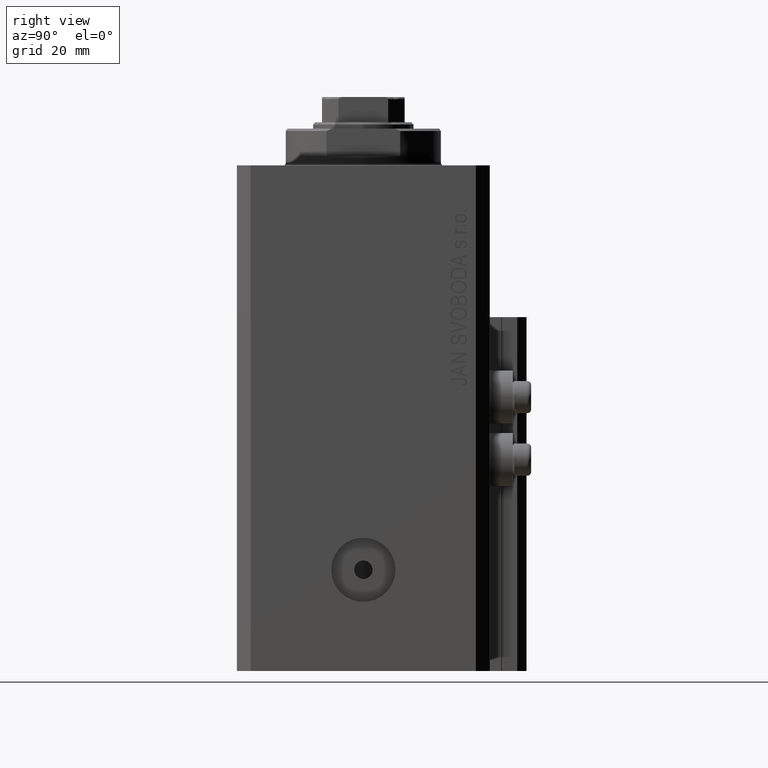
[diagram: clean part render]
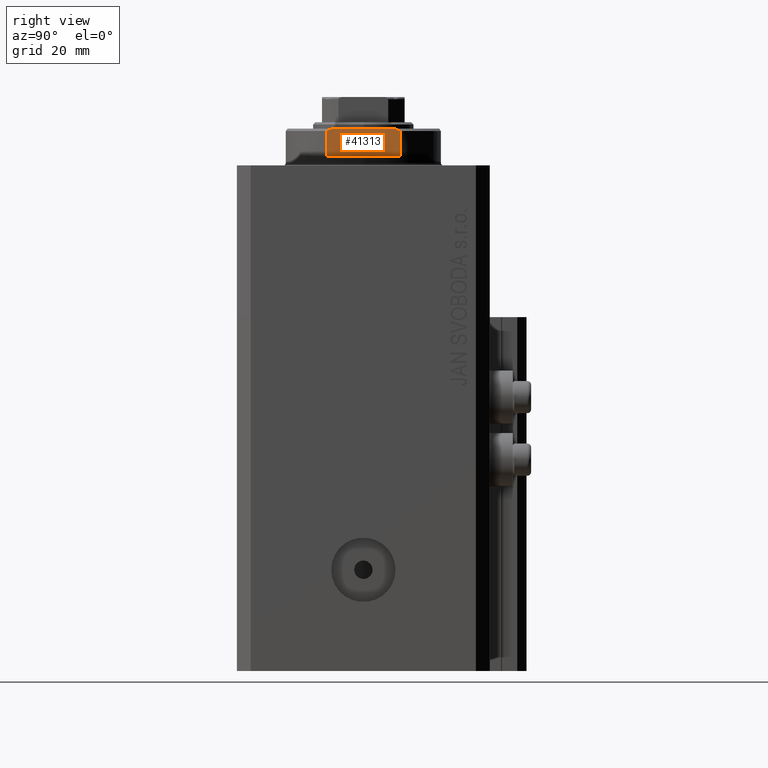
[diagram: same view with one face highlighted and labeled with its STEP entity id]
A machine part, right view. The second image highlights one B-rep face of the part: STEP entity #41313.
In plain terms, the highlighted planar face has unit normal (-1, 0, 0).
Its self-contained STEP definition (entity closure, byte-faithful):
#318 = CARTESIAN_POINT ( 'NONE',  ( -15.00000000000000000, -42.42640687119285303, -2.000000000000000000 ) ) ;
#541 = CARTESIAN_POINT ( 'NONE',  ( -15.00000000000000000, 7.253126193285940104, -7.842000017654667587 ) ) ;
#836 = CARTESIAN_POINT ( 'NONE',  ( -15.00000000000000000, -6.873863542433783280, -8.000000000000000000 ) ) ;
#963 = CARTESIAN_POINT ( 'NONE',  ( -15.00000000000000000, -8.000000000000001776, -8.000000000000000000 ) ) ;
#1464 = VERTEX_POINT ( 'NONE', #34053 ) ;
#3762 = EDGE_CURVE ( 'NONE', #46912, #11595, #16215, .T. ) ;
#3772 = ORIENTED_EDGE ( 'NONE', *, *, #25492, .F. ) ;
#5694 = PLANE ( 'NONE',  #28915 ) ;
#6757 = ORIENTED_EDGE ( 'NONE', *, *, #35366, .T. ) ;
#7125 = B_SPLINE_CURVE_WITH_KNOTS ( 'NONE', 3,
 ( #8648, #16297, #12009, #8431 ),
 .UNSPECIFIED., .F., .F.,
 ( 4, 4 ),
 ( 0.04875332532859062012, 0.04998905627745663799 ),
 .UNSPECIFIED. ) ;
#7251 = CARTESIAN_POINT ( 'NONE',  ( -14.99999999999999645, 6.873863542433781504, -8.000000000000000000 ) ) ;
#8431 = CARTESIAN_POINT ( 'NONE',  ( -15.00000000000000000, -8.000000000000001776, -7.500000000000014211 ) ) ;
#8648 = CARTESIAN_POINT ( 'NONE',  ( -15.00000000000000000, -6.873863542433783280, -8.000000000000000000 ) ) ;
#9266 = CARTESIAN_POINT ( 'NONE',  ( -15.00000000000000000, -42.42640687119285303, -8.000000000000000000 ) ) ;
#9305 = LINE ( 'NONE', #963, #28247 ) ;
#9559 = EDGE_CURVE ( 'NONE', #11595, #14821, #7125, .T. ) ;
#9735 = DIRECTION ( 'NONE',  ( -0.000000000000000000, -0.000000000000000000, 1.000000000000000000 ) ) ;
#11302 = EDGE_CURVE ( 'NONE', #31088, #14821, #9305, .T. ) ;
#11595 = VERTEX_POINT ( 'NONE', #836 ) ;
#12009 = CARTESIAN_POINT ( 'NONE',  ( -15.00000000000000000, -7.629305121525818301, -7.674444648693746984 ) ) ;
#14821 = VERTEX_POINT ( 'NONE', #16501 ) ;
#15137 = LINE ( 'NONE', #318, #24164 ) ;
#15542 = DIRECTION ( 'NONE',  ( 0.000000000000000000, 0.000000000000000000, -1.000000000000000000 ) ) ;
#16215 = LINE ( 'NONE', #9266, #27249 ) ;
#16297 = CARTESIAN_POINT ( 'NONE',  ( -15.00000000000000000, -7.254193676168139149, -7.841555306644512058 ) ) ;
#16501 = CARTESIAN_POINT ( 'NONE',  ( -15.00000000000000000, -8.000000000000001776, -7.500000000000014211 ) ) ;
#18499 = DIRECTION ( 'NONE',  ( -0.000000000000000000, -1.000000000000000000, -0.000000000000000000 ) ) ;
#19531 = CARTESIAN_POINT ( 'NONE',  ( -14.99999999999999645, 6.873863542433781504, -8.000000000000000000 ) ) ;
#20275 = LINE ( 'NONE', #42532, #36991 ) ;
#20765 = DIRECTION ( 'NONE',  ( 0.000000000000000000, 0.000000000000000000, -1.000000000000000000 ) ) ;
#21671 = ORIENTED_EDGE ( 'NONE', *, *, #31543, .F. ) ;
#22307 = CARTESIAN_POINT ( 'NONE',  ( -15.00000000000000000, 7.628315461082486593, -7.674910371255312391 ) ) ;
#22650 = EDGE_LOOP ( 'NONE', ( #6757, #24051, #46013, #35000, #21671, #3772 ) ) ;
#23160 = DIRECTION ( 'NONE',  ( -0.000000000000000000, -1.000000000000000000, -0.000000000000000000 ) ) ;
#24051 = ORIENTED_EDGE ( 'NONE', *, *, #3762, .T. ) ;
#24114 = CARTESIAN_POINT ( 'NONE',  ( -15.00000000000000000, -42.42640687119285303, -2.000000000000000000 ) ) ;
#24164 = VECTOR ( 'NONE', #18499, 1000.000000000000000 ) ;
#25492 = EDGE_CURVE ( 'NONE', #40577, #1464, #20275, .T. ) ;
#27249 = VECTOR ( 'NONE', #23160, 1000.000000000000000 ) ;
#27474 = DIRECTION ( 'NONE',  ( 1.000000000000000000, 0.000000000000000000, 0.000000000000000000 ) ) ;
#28247 = VECTOR ( 'NONE', #15542, 1000.000000000000000 ) ;
#28610 = CARTESIAN_POINT ( 'NONE',  ( -14.99999999999999645, -8.000000000000003553, -2.000000000000000000 ) ) ;
#28915 = AXIS2_PLACEMENT_3D ( 'NONE', #24114, #27474, #20765 ) ;
#29697 = B_SPLINE_CURVE_WITH_KNOTS ( 'NONE', 3,
 ( #42672, #22307, #541, #7251 ),
 .UNSPECIFIED., .F., .F.,
 ( 4, 4 ),
 ( 0.03336039268697044147, 0.03459498301323848946 ),
 .UNSPECIFIED. ) ;
#31088 = VERTEX_POINT ( 'NONE', #28610 ) ;
#31543 = EDGE_CURVE ( 'NONE', #1464, #31088, #15137, .T. ) ;
#34053 = CARTESIAN_POINT ( 'NONE',  ( -14.99999999999999645, 8.000000000000003553, -2.000000000000000000 ) ) ;
#35000 = ORIENTED_EDGE ( 'NONE', *, *, #11302, .F. ) ;
#35366 = EDGE_CURVE ( 'NONE', #40577, #46912, #29697, .T. ) ;
#36991 = VECTOR ( 'NONE', #9735, 1000.000000000000000 ) ;
#38647 = CARTESIAN_POINT ( 'NONE',  ( -15.00000000000000000, 8.000000000000001776, -7.500000000000013323 ) ) ;
#40577 = VERTEX_POINT ( 'NONE', #38647 ) ;
#41313 = ADVANCED_FACE ( 'NONE', ( #41849 ), #5694, .F. ) ;
#41849 = FACE_OUTER_BOUND ( 'NONE', #22650, .T. ) ;
#42532 = CARTESIAN_POINT ( 'NONE',  ( -15.00000000000000000, 8.000000000000001776, -8.000000000000000000 ) ) ;
#42672 = CARTESIAN_POINT ( 'NONE',  ( -15.00000000000000000, 8.000000000000001776, -7.500000000000013323 ) ) ;
#46013 = ORIENTED_EDGE ( 'NONE', *, *, #9559, .T. ) ;
#46912 = VERTEX_POINT ( 'NONE', #19531 ) ;